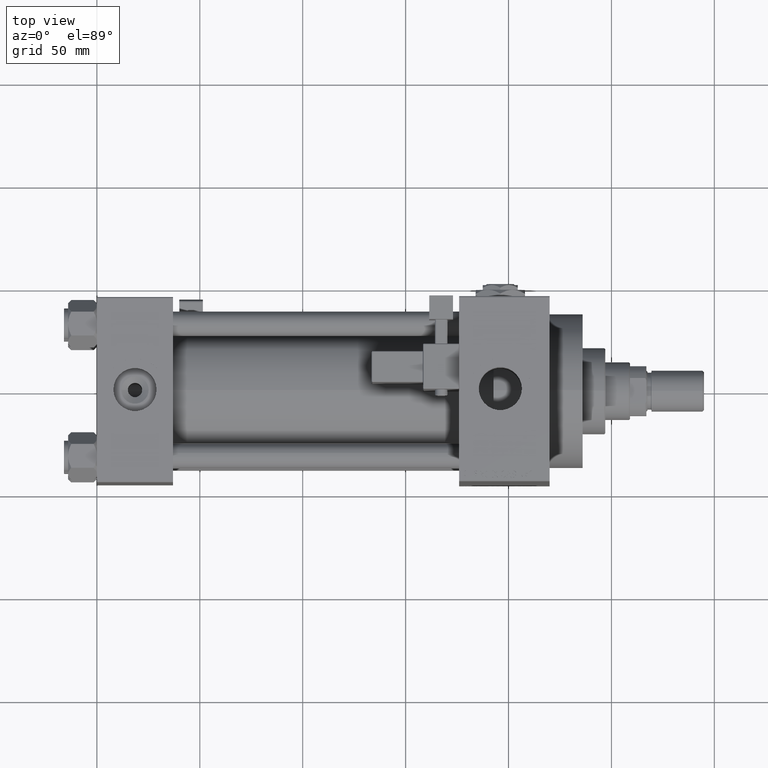
[diagram: clean part render]
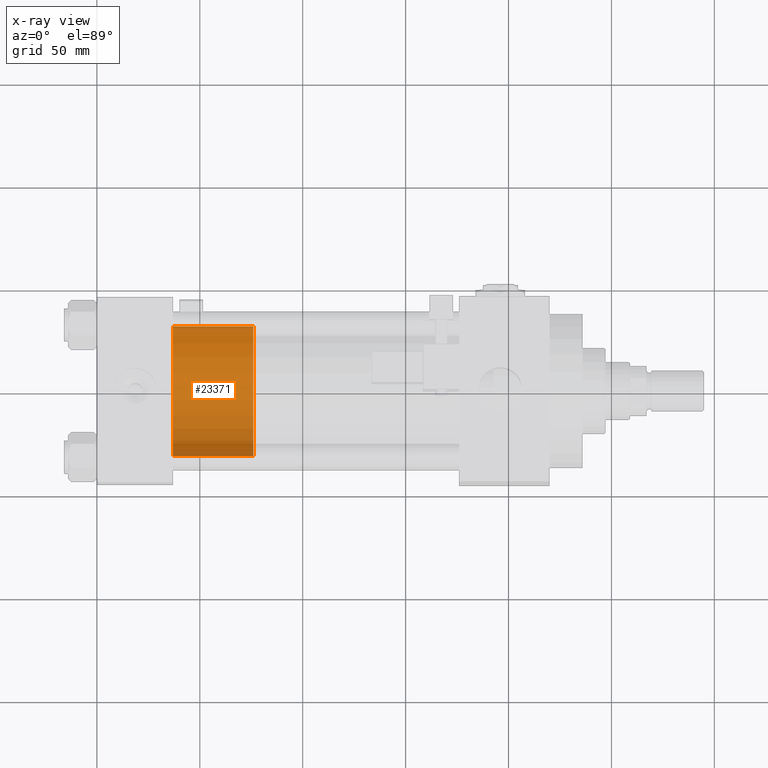
[diagram: x-ray — body ghosted, one internal face saturated and labeled with its STEP entity id]
A machine part, top view, then the same camera in x-ray: the body is ghosted and one INTERNAL B-rep face — a face not visible from any outside direction — is saturated and labeled: STEP entity #23371.
In plain terms, the highlighted cylindrical surface (partial cylindrical patch) has radius 31.5 mm, axis along (-1, 0, 0).
Its self-contained STEP definition (entity closure, byte-faithful):
#4972 = CIRCLE ( 'NONE', #50824, 31.50000000000000000 ) ;
#7252 = CARTESIAN_POINT ( 'NONE',  ( 31.50000000000000000, 3.857637417314162689E-15, 39.00000000000000000 ) ) ;
#7447 = DIRECTION ( 'NONE',  ( 1.000000000000000000, 0.000000000000000000, 0.000000000000000000 ) ) ;
#9582 = EDGE_CURVE ( 'NONE', #12358, #37035, #9677, .T. ) ;
#9677 = LINE ( 'NONE', #25579, #50793 ) ;
#9950 = EDGE_CURVE ( 'NONE', #47620, #23714, #48732, .T. ) ;
#10070 = CARTESIAN_POINT ( 'NONE',  ( 0.000000000000000000, 0.000000000000000000, 0.000000000000000000 ) ) ;
#11319 = EDGE_CURVE ( 'NONE', #37035, #23714, #4972, .T. ) ;
#11826 = CARTESIAN_POINT ( 'NONE',  ( -31.50000000000000000, 0.000000000000000000, 0.000000000000000000 ) ) ;
#12358 = VERTEX_POINT ( 'NONE', #7252 ) ;
#14005 = DIRECTION ( 'NONE',  ( -0.000000000000000000, -0.000000000000000000, -1.000000000000000000 ) ) ;
#17425 = ORIENTED_EDGE ( 'NONE', *, *, #20423, .F. ) ;
#18922 = DIRECTION ( 'NONE',  ( 1.000000000000000000, 0.000000000000000000, 0.000000000000000000 ) ) ;
#20423 = EDGE_CURVE ( 'NONE', #12358, #47620, #38113, .T. ) ;
#20943 = ORIENTED_EDGE ( 'NONE', *, *, #9950, .F. ) ;
#23371 = ADVANCED_FACE ( 'NONE', ( #25731 ), #41618, .T. ) ;
#23714 = VERTEX_POINT ( 'NONE', #11826 ) ;
#25256 = EDGE_LOOP ( 'NONE', ( #17425, #33475, #42362, #20943 ) ) ;
#25265 = CARTESIAN_POINT ( 'NONE',  ( -31.50000000000000000, 0.000000000000000000, 39.00000000000000000 ) ) ;
#25579 = CARTESIAN_POINT ( 'NONE',  ( 31.50000000000000000, 3.857637417314162689E-15, 39.00000000000000000 ) ) ;
#25731 = FACE_OUTER_BOUND ( 'NONE', #25256, .T. ) ;
#26374 = CARTESIAN_POINT ( 'NONE',  ( 31.50000000000000000, 3.857637417314162689E-15, 0.000000000000000000 ) ) ;
#29928 = VECTOR ( 'NONE', #41156, 1000.000000000000000 ) ;
#30143 = DIRECTION ( 'NONE',  ( 0.000000000000000000, 0.000000000000000000, 1.000000000000000000 ) ) ;
#33475 = ORIENTED_EDGE ( 'NONE', *, *, #9582, .T. ) ;
#33814 = DIRECTION ( 'NONE',  ( -1.000000000000000000, 0.000000000000000000, 0.000000000000000000 ) ) ;
#34802 = AXIS2_PLACEMENT_3D ( 'NONE', #46798, #37949, #18922 ) ;
#37035 = VERTEX_POINT ( 'NONE', #26374 ) ;
#37208 = CARTESIAN_POINT ( 'NONE',  ( 0.000000000000000000, 0.000000000000000000, 39.00000000000000000 ) ) ;
#37949 = DIRECTION ( 'NONE',  ( 0.000000000000000000, 0.000000000000000000, 1.000000000000000000 ) ) ;
#38092 = DIRECTION ( 'NONE',  ( -0.000000000000000000, -0.000000000000000000, -1.000000000000000000 ) ) ;
#38113 = CIRCLE ( 'NONE', #34802, 31.50000000000000000 ) ;
#40292 = CARTESIAN_POINT ( 'NONE',  ( -31.50000000000000000, 0.000000000000000000, 39.00000000000000000 ) ) ;
#41156 = DIRECTION ( 'NONE',  ( -0.000000000000000000, -0.000000000000000000, -1.000000000000000000 ) ) ;
#41618 = CYLINDRICAL_SURFACE ( 'NONE', #51559, 31.50000000000000000 ) ;
#42362 = ORIENTED_EDGE ( 'NONE', *, *, #11319, .T. ) ;
#46798 = CARTESIAN_POINT ( 'NONE',  ( 0.000000000000000000, 0.000000000000000000, 39.00000000000000000 ) ) ;
#47620 = VERTEX_POINT ( 'NONE', #40292 ) ;
#48732 = LINE ( 'NONE', #25265, #29928 ) ;
#50793 = VECTOR ( 'NONE', #38092, 1000.000000000000000 ) ;
#50824 = AXIS2_PLACEMENT_3D ( 'NONE', #10070, #30143, #7447 ) ;
#51559 = AXIS2_PLACEMENT_3D ( 'NONE', #37208, #14005, #33814 ) ;